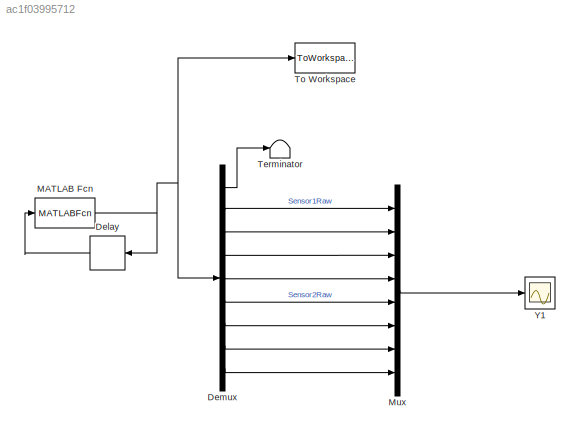
MODEL slx_ac1f03995712
KIND model
CONFIG AbsTol = auto
CONFIG FixedStep = .01
CONFIG MaxStep = auto
CONFIG MinStep = auto
CONFIG RelTol = 1e-3
CONFIG SampleTimeConstraint = Unconstrained
CONFIG Solver = ode3
CONFIG SolverMode = Auto
CONFIG SolverName = ode3
CONFIG StartFcn = s_2 = serial('COM10','BaudRate',115200,'FlowControl','none','Parity','none','DataBits',8,'StopBits',1,'Timeout',3);\ns_2.InputBufferSize=1024; s_2.OutputBufferSize=1024;\ns_2.Terminator='CR';\n\nfopen(s_2);\n
CONFIG StartTime = 0.0
CONFIG StopFcn = fclose(s_2);
CONFIG StopTime = 100
BLOCK [Delay] Delay
  DelayLength = 1
  InitialCondition = 0
  InputPortMap = u0
  Ports = [1, 1]
BLOCK [Demux] Demux
  DisplayOption = bar
  Outputs = 9
  Ports = [1, 9]
BLOCK [MATLABFcn] MATLAB Fcn
  MATLABFcn = serialRead(u,s_2)
  OutputDimensions = 9
  Ports = [1, 1]
BLOCK [Mux] Mux
  DisplayOption = bar
  Inputs = 8
  Ports = [8, 1]
BLOCK [Terminator] Terminator
BLOCK [ToWorkspace] To Workspace
  FixptAsFi = on
  MaxDataPoints = inf
  Ports = [1]
  SampleTime = -1
  Save2DSignal = 3-D array (concatenate along third dimension)
  SaveFormat = Timeseries
  VariableName = simout
BLOCK [Scope] Y1
  Ports = [1]
  ScopeSpecificationString = Simulink.scopes.TimeScopeBlockCfg('CurrentConfiguration', extmgr.ConfigurationSet(extmgr.Configuration('Core','General UI',true),extmgr.Configuration('Core','Source UI',true),extmgr.Configuration('Sources','WiredSimulink',true,'DataLoggingSaveFormat','StructureWithTime','DataLoggingDecimation','1','DataLoggingDecimateData',true),extmgr.Configuration('Visuals','Time Domain',true,'SerializedDisplays...<+1680ch>
LINE Delay:1 -> MATLAB Fcn:1
LINE Demux:1 -> Terminator:1
LINE Demux:2 -> Mux:1
LINE Demux:3 -> Mux:2
LINE Demux:4 -> Mux:3
LINE Demux:5 -> Mux:4
LINE Demux:6 -> Mux:5
LINE Demux:7 -> Mux:6
LINE Demux:8 -> Mux:7
LINE Demux:9 -> Mux:8
NET MATLAB Fcn:1 -> Delay:1, Demux:1, To Workspace:1
LINE Mux:1 -> Y1:1
note: NET lines group one-source signal fan-out (src -> all destinations, sorted); 1:1 wires keep LINE
